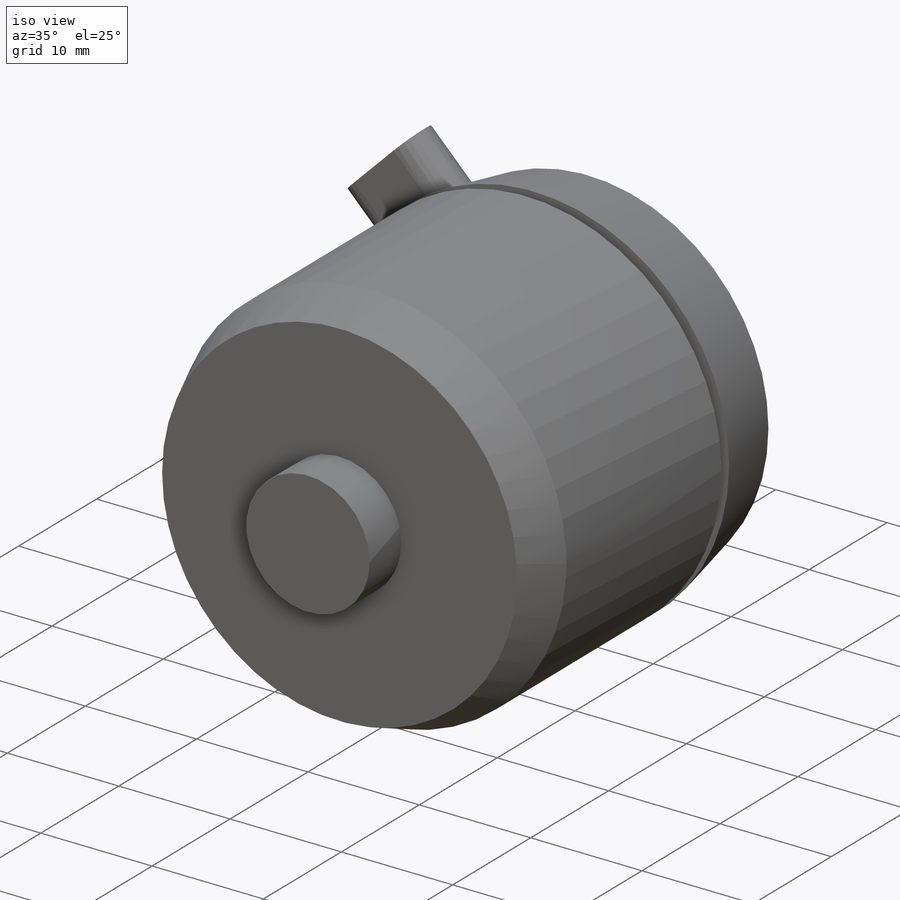
[diagram: iso view]
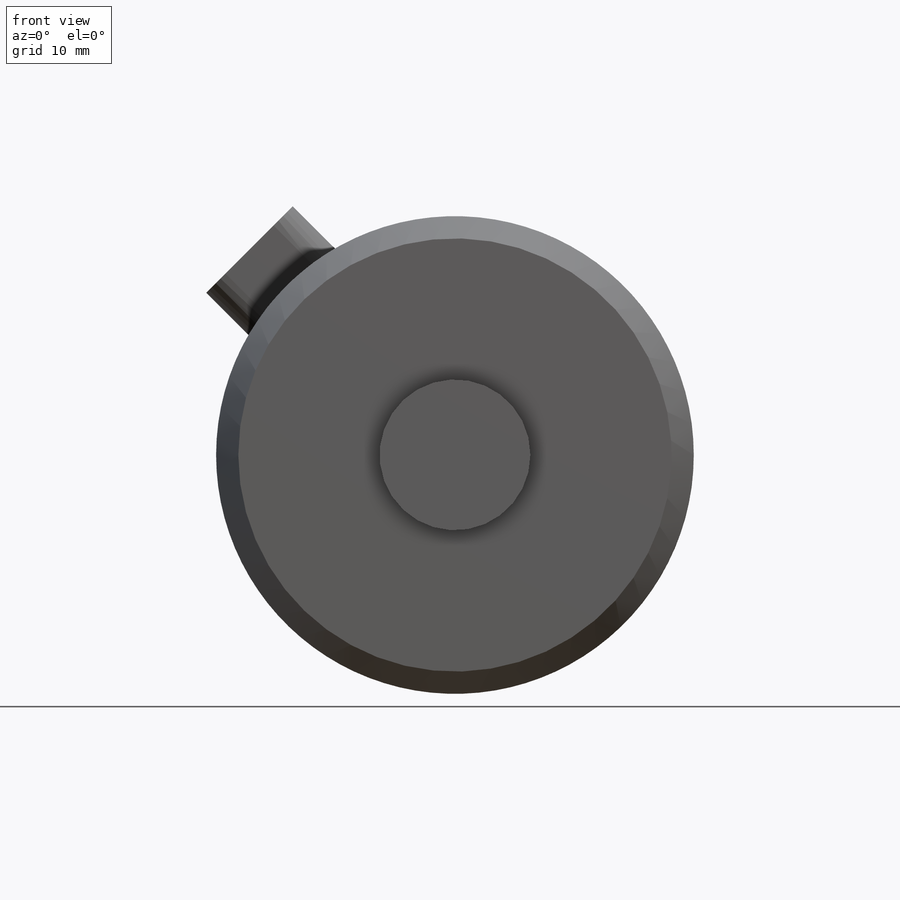
[diagram: front view]
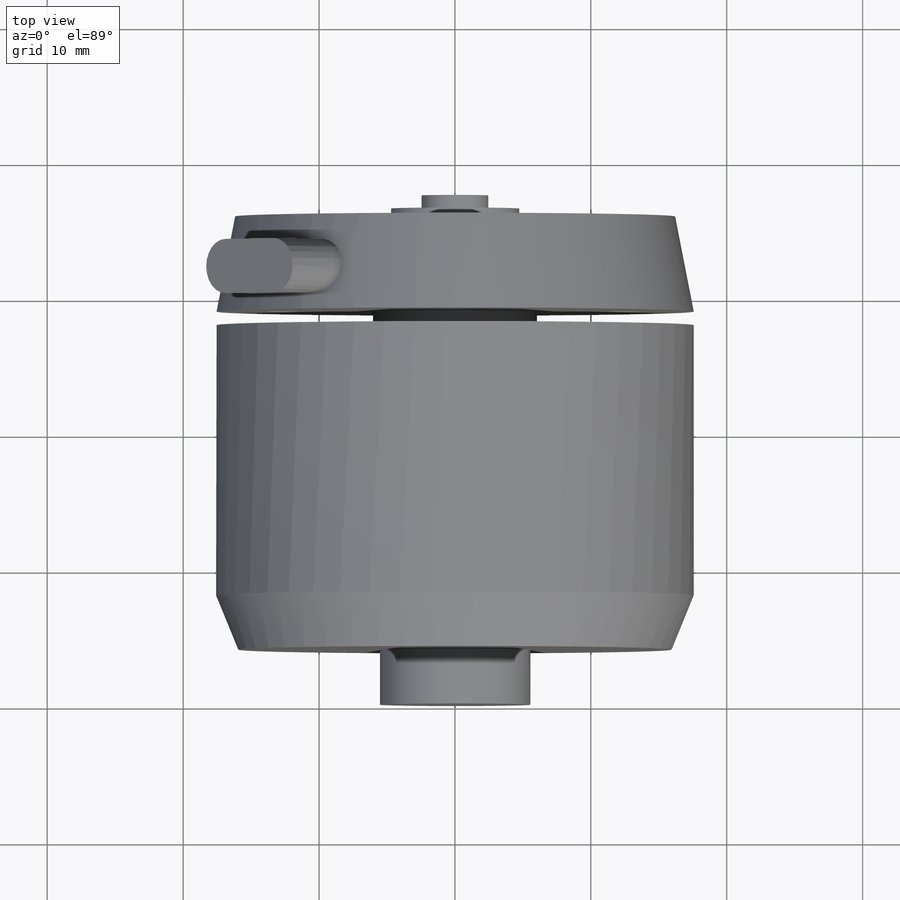
[diagram: top view]
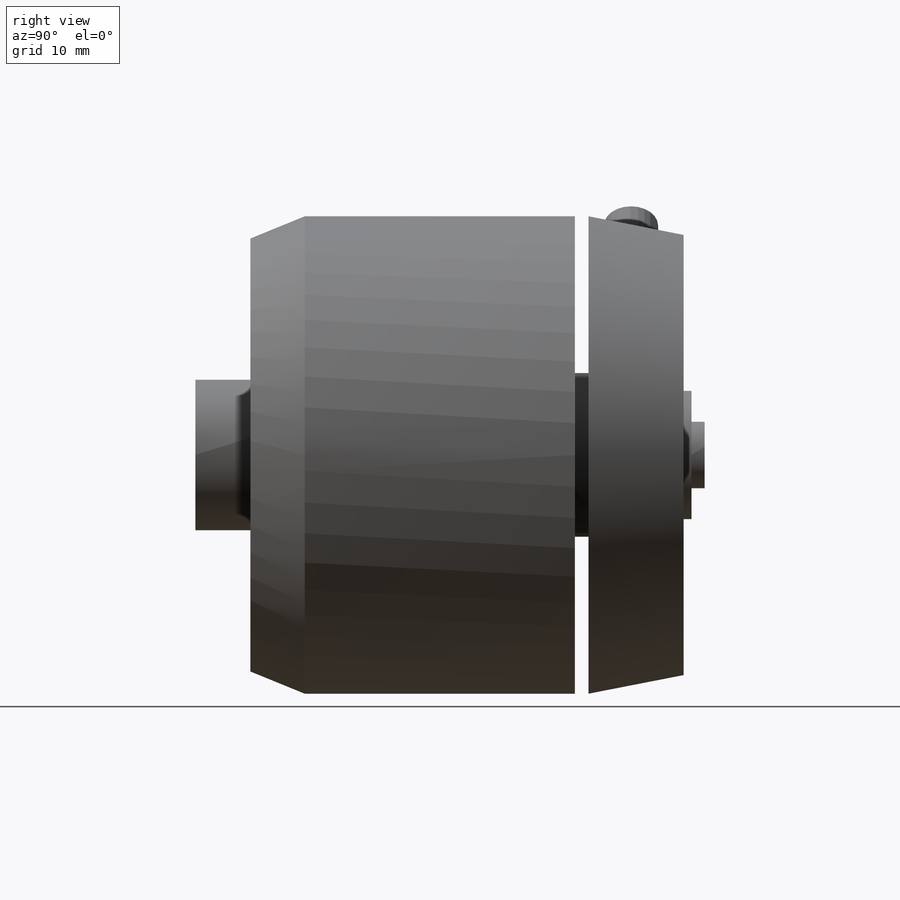
[diagram: right view]
SOLIDWORKS PART (.sldprt)
format: sldprt  version: not decoded by parser v0  size: 215,040 bytes
history: native  units: mm
features: sketch x3, material x1, revolve x1, cut_extrude x1, plane x1, extrude x1 (+11 scaffold rows collapsed)
feature tree (19):
  scaffold x11  (default folders/planes/origin — collapsed)
  material  "Turnigy Aerodrive D3536/5 1450"
  sketch  "Sketch1"  dims[c1.D1=31.8643mm c1.D2=17.6149mm c1.D3=15.9004mm c1.D4=5.5499mm c1.D5=4.0513mm c1.D6=2.4892mm c2.D1=31.88mm c2.D3=7.0mm c2.D6=1.0mm c2.D2=17.575mm c2.D7=~9.821435mm c3.D7=90.0deg c4.D7=15.94mm c4.D8=4.0mm c4.D9=16.205mm c4.D10=~4.73075mm c4.D11=2.4511mm c4.D12=0.5842mm c4.D13=1.5494mm]
  revolve  "Revolve1"  Angle=360deg
  sketch  "Sketch2"  dims[c1.D4=2.58mm c1.D5=2.58mm c1.D6=2.58mm c1.D2=~4.905992mm c2.D2=90.0deg c2.D3=~13.304846mm c3.D3=45.0deg c3.D5=22.56mm c3.D6=16.51mm c3.D1=2.0]
  cut_extrude  "Cut-Extrude1"  Depth=7mm
  plane  "Plane1"
  sketch  "Sketch3"  dims[c1.D2=1.9939mm c1.D1=3.9878mm c2.D2=8.9916mm c2.D3=1.8669mm c2.D4=~32.070631mm c3.D3=1.8796mm]
  extrude  "Boss-Extrude1"  Depth=7.62mm
decode coverage: 6 of 6 modeling features carry decoded parameters
note: ~ marks probable driven/reference dimensions
note: suppression state not decoded; provenance and decode notes live in map.json
